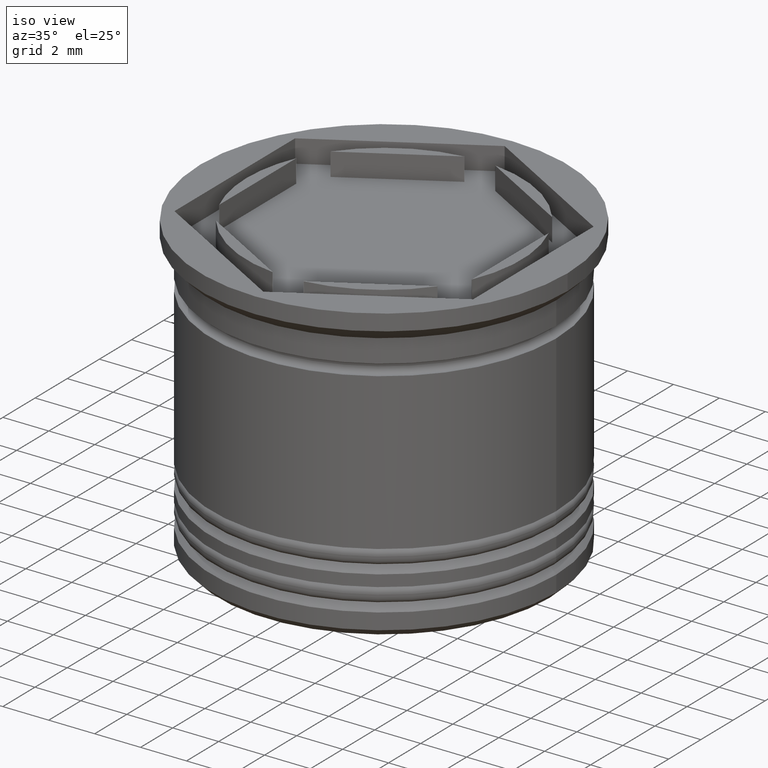
[diagram: clean part render]
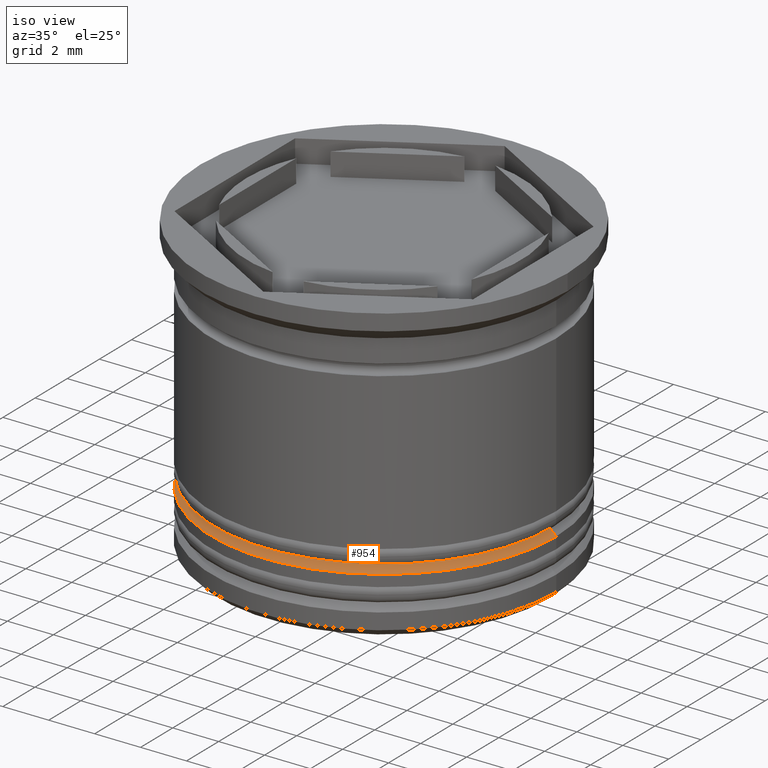
[diagram: same view with one face highlighted and labeled with its STEP entity id]
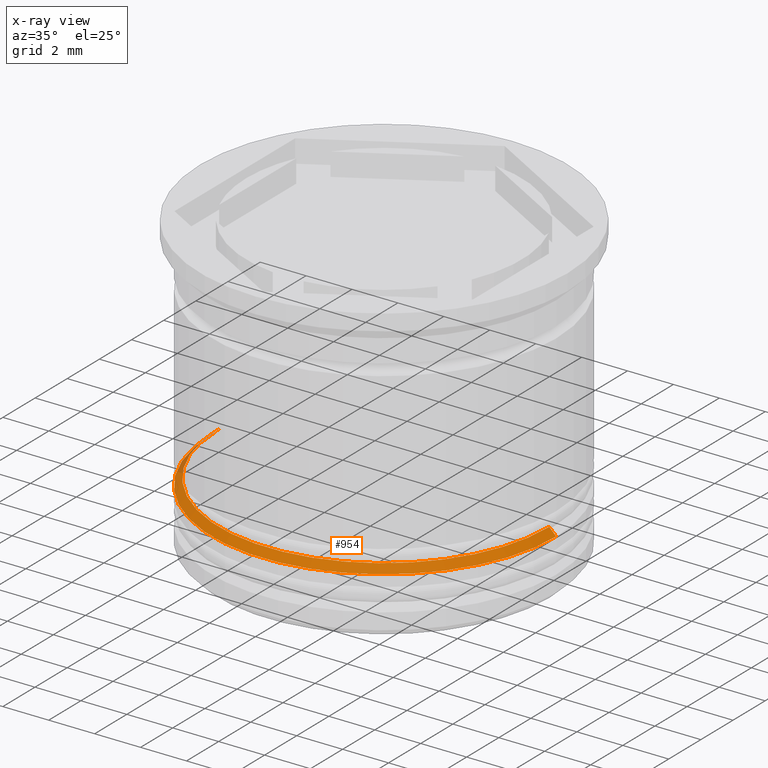
[diagram: x-ray of the same camera — body ghosted, the highlighted face saturated]
A machine part, iso view. The second image highlights one B-rep face of the part: STEP entity #954.
The next image is the same camera in x-ray: the body ghosted, the highlighted face saturated — about 2% of this face is hidden behind the body in this view.
In plain terms, the highlighted conical surface has half-angle 45 deg.
Its self-contained STEP definition (entity closure, byte-faithful):
#5 = DIRECTION ( 'NONE',  ( 0.000000000000000000, 0.000000000000000000, -1.000000000000000000 ) ) ;
#48 = AXIS2_PLACEMENT_3D ( 'NONE', #1145, #1606, #576 ) ;
#87 = VERTEX_POINT ( 'NONE', #225 ) ;
#191 = DIRECTION ( 'NONE',  ( -0.7071067811865512365, 0.000000000000000000, -0.7071067811865439090 ) ) ;
#202 = VERTEX_POINT ( 'NONE', #1974 ) ;
#225 = CARTESIAN_POINT ( 'NONE',  ( 7.500000000000001776, 0.000000000000000000, -10.50000000000000355 ) ) ;
#236 = CARTESIAN_POINT ( 'NONE',  ( 7.200000000000000178, 0.000000000000000000, -10.20000000000000639 ) ) ;
#302 = CARTESIAN_POINT ( 'NONE',  ( 0.000000000000000000, 0.000000000000000000, -10.00000000000000000 ) ) ;
#311 = VECTOR ( 'NONE', #191, 1000.000000000000000 ) ;
#369 = ORIENTED_EDGE ( 'NONE', *, *, #1661, .F. ) ;
#454 = CARTESIAN_POINT ( 'NONE',  ( 6.999999999999992006, 8.572527594031463329E-16, -10.00000000000000000 ) ) ;
#482 = CIRCLE ( 'NONE', #1496, 7.500000000000001776 ) ;
#493 = EDGE_CURVE ( 'NONE', #731, #87, #1959, .T. ) ;
#576 = DIRECTION ( 'NONE',  ( -1.000000000000000000, 0.000000000000000000, 0.000000000000000000 ) ) ;
#583 = DIRECTION ( 'NONE',  ( 0.000000000000000000, 0.000000000000000000, -1.000000000000000000 ) ) ;
#731 = VERTEX_POINT ( 'NONE', #236 ) ;
#758 = EDGE_CURVE ( 'NONE', #87, #1456, #482, .T. ) ;
#790 = CARTESIAN_POINT ( 'NONE',  ( -7.500000000000001776, 9.184850993605149917E-16, -10.50000000000000355 ) ) ;
#871 = CARTESIAN_POINT ( 'NONE',  ( 0.000000000000000000, 0.000000000000000000, -10.50000000000000355 ) ) ;
#954 = ADVANCED_FACE ( 'NONE', ( #1376 ), #1105, .T. ) ;
#955 = LINE ( 'NONE', #1563, #311 ) ;
#1102 = DIRECTION ( 'NONE',  ( -1.000000000000000000, 0.000000000000000000, 0.000000000000000000 ) ) ;
#1105 = CONICAL_SURFACE ( 'NONE', #1767, 6.999999999999992006, 0.7853981633974533860 ) ;
#1108 = CIRCLE ( 'NONE', #48, 7.200000000000000178 ) ;
#1145 = CARTESIAN_POINT ( 'NONE',  ( 0.000000000000000000, 0.000000000000000000, -10.20000000000000639 ) ) ;
#1161 = DIRECTION ( 'NONE',  ( 0.7071067811865512365, 8.659560562354978464E-17, -0.7071067811865439090 ) ) ;
#1337 = ORIENTED_EDGE ( 'NONE', *, *, #1624, .T. ) ;
#1368 = VECTOR ( 'NONE', #1161, 1000.000000000000000 ) ;
#1376 = FACE_OUTER_BOUND ( 'NONE', #1786, .T. ) ;
#1440 = ORIENTED_EDGE ( 'NONE', *, *, #758, .F. ) ;
#1456 = VERTEX_POINT ( 'NONE', #790 ) ;
#1496 = AXIS2_PLACEMENT_3D ( 'NONE', #871, #583, #1660 ) ;
#1563 = CARTESIAN_POINT ( 'NONE',  ( -6.999999999999992006, 0.000000000000000000, -10.00000000000000000 ) ) ;
#1606 = DIRECTION ( 'NONE',  ( -0.000000000000000000, -0.000000000000000000, 1.000000000000000000 ) ) ;
#1624 = EDGE_CURVE ( 'NONE', #202, #1456, #955, .T. ) ;
#1660 = DIRECTION ( 'NONE',  ( -1.000000000000000000, 0.000000000000000000, 0.000000000000000000 ) ) ;
#1661 = EDGE_CURVE ( 'NONE', #202, #731, #1108, .T. ) ;
#1767 = AXIS2_PLACEMENT_3D ( 'NONE', #302, #5, #1102 ) ;
#1786 = EDGE_LOOP ( 'NONE', ( #1890, #369, #1337, #1440 ) ) ;
#1890 = ORIENTED_EDGE ( 'NONE', *, *, #493, .F. ) ;
#1959 = LINE ( 'NONE', #454, #1368 ) ;
#1974 = CARTESIAN_POINT ( 'NONE',  ( -7.200000000000000178, 8.817456953860942303E-16, -10.20000000000000639 ) ) ;